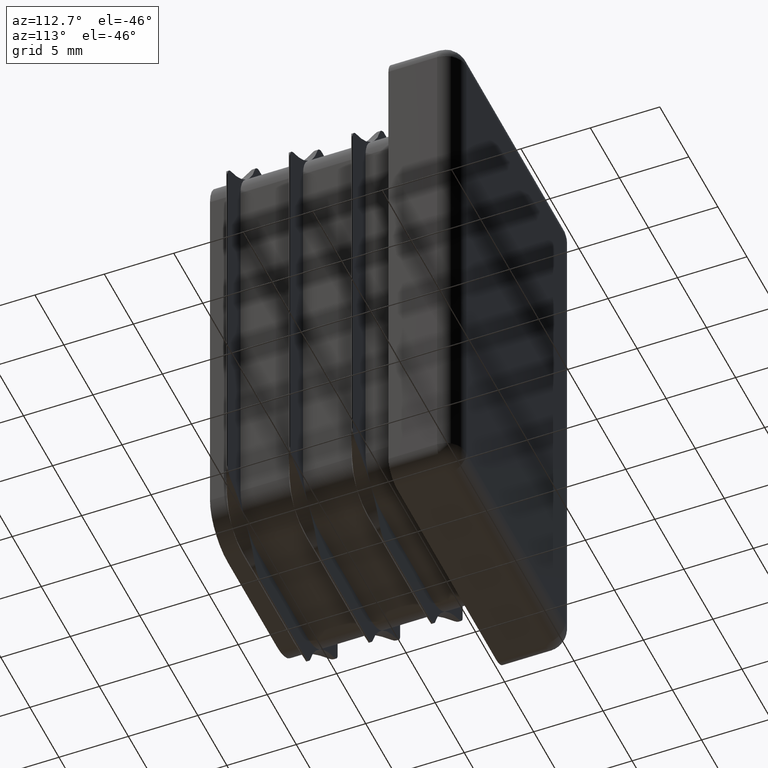
[diagram: clean part render]
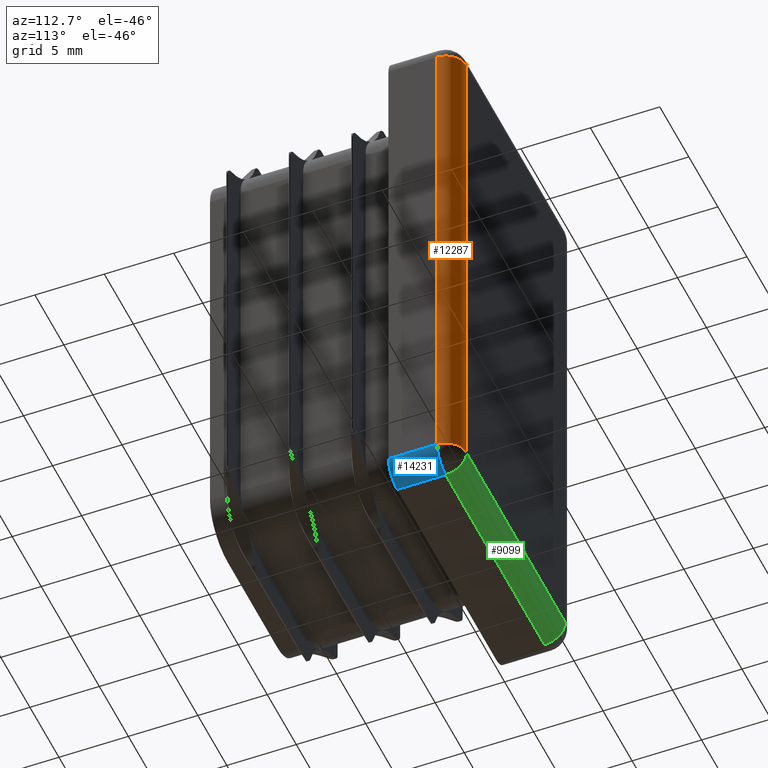
[diagram: same view with three faces highlighted in distinct colors, each labeled with its STEP entity id]
A machine part, auxiliary view with three faces highlighted in distinct colors.
Their STEP definitions:

[orange] entity #12287 — the highlighted cylindrical surface (edge-blend (fillet) strip) has radius 1.5 mm, axis along (0, -0, 1).
#180 = VECTOR ( 'NONE', #11767, 1000.000000000000000 ) ;
#631 = VERTEX_POINT ( 'NONE', #14915 ) ;
#647 = LINE ( 'NONE', #8558, #180 ) ;
#1496 = DIRECTION ( 'NONE',  ( 1.000000000000000000, 0.000000000000000000, 0.000000000000000000 ) ) ;
#1526 = CIRCLE ( 'NONE', #11439, 1.499999999999999556 ) ;
#2620 = DIRECTION ( 'NONE',  ( 0.000000000000000000, 0.000000000000000000, 1.000000000000000000 ) ) ;
#2693 = AXIS2_PLACEMENT_3D ( 'NONE', #4427, #14805, #1496 ) ;
#3025 = CYLINDRICAL_SURFACE ( 'NONE', #6285, 1.499999999999999556 ) ;
#3050 = CARTESIAN_POINT ( 'NONE',  ( 8.500000000000000000, 5.000000000000000000, -18.50000000000000000 ) ) ;
#3333 = VERTEX_POINT ( 'NONE', #3451 ) ;
#3415 = ORIENTED_EDGE ( 'NONE', *, *, #6999, .T. ) ;
#3451 = CARTESIAN_POINT ( 'NONE',  ( 10.00000000000000000, 3.500000000000000000, -18.50000000000000000 ) ) ;
#4155 = DIRECTION ( 'NONE',  ( 8.673617379884035472E-17, -0.000000000000000000, 1.000000000000000000 ) ) ;
#4222 = DIRECTION ( 'NONE',  ( 1.000000000000000000, 0.000000000000000000, -8.673617379884039170E-17 ) ) ;
#4427 = CARTESIAN_POINT ( 'NONE',  ( 8.500000000000003553, 3.500000000000000000, 18.50000000000000000 ) ) ;
#6018 = EDGE_CURVE ( 'NONE', #9917, #17380, #647, .T. ) ;
#6285 = AXIS2_PLACEMENT_3D ( 'NONE', #17527, #4155, #4222 ) ;
#6999 = EDGE_CURVE ( 'NONE', #3333, #17380, #1526, .T. ) ;
#7153 = ORIENTED_EDGE ( 'NONE', *, *, #6018, .F. ) ;
#7675 = CIRCLE ( 'NONE', #2693, 1.499999999999999556 ) ;
#8091 = FACE_OUTER_BOUND ( 'NONE', #16697, .T. ) ;
#8558 = CARTESIAN_POINT ( 'NONE',  ( 8.500000000000000000, 5.000000000000000000, -18.50000000000000000 ) ) ;
#9432 = CARTESIAN_POINT ( 'NONE',  ( 10.00000000000000355, 3.500000000000000000, 18.50000000000000000 ) ) ;
#9917 = VERTEX_POINT ( 'NONE', #19038 ) ;
#10053 = EDGE_CURVE ( 'NONE', #631, #9917, #7675, .T. ) ;
#11054 = LINE ( 'NONE', #9432, #14019 ) ;
#11420 = CARTESIAN_POINT ( 'NONE',  ( 8.500000000000001776, 3.500000000000000000, -18.50000000000000000 ) ) ;
#11439 = AXIS2_PLACEMENT_3D ( 'NONE', #11420, #2620, #14373 ) ;
#11767 = DIRECTION ( 'NONE',  ( -8.673617379884035472E-17, 0.000000000000000000, -1.000000000000000000 ) ) ;
#12151 = ORIENTED_EDGE ( 'NONE', *, *, #10053, .F. ) ;
#12287 = ADVANCED_FACE ( 'NONE', ( #8091 ), #3025, .T. ) ;
#12424 = ORIENTED_EDGE ( 'NONE', *, *, #13562, .F. ) ;
#13562 = EDGE_CURVE ( 'NONE', #3333, #631, #11054, .T. ) ;
#13868 = DIRECTION ( 'NONE',  ( 8.673617379884035472E-17, -0.000000000000000000, 1.000000000000000000 ) ) ;
#14019 = VECTOR ( 'NONE', #13868, 1000.000000000000000 ) ;
#14373 = DIRECTION ( 'NONE',  ( 1.000000000000000000, 0.000000000000000000, 0.000000000000000000 ) ) ;
#14805 = DIRECTION ( 'NONE',  ( 0.000000000000000000, 0.000000000000000000, 1.000000000000000000 ) ) ;
#14915 = CARTESIAN_POINT ( 'NONE',  ( 10.00000000000000355, 3.500000000000000000, 18.50000000000000000 ) ) ;
#16697 = EDGE_LOOP ( 'NONE', ( #3415, #7153, #12151, #12424 ) ) ;
#17380 = VERTEX_POINT ( 'NONE', #3050 ) ;
#17527 = CARTESIAN_POINT ( 'NONE',  ( 8.500000000000001776, 3.500000000000000000, -7.372574772901432123E-16 ) ) ;
#19038 = CARTESIAN_POINT ( 'NONE',  ( 8.500000000000003553, 5.000000000000000000, 18.50000000000000000 ) ) ;

[blue] entity #14231 — the highlighted cylindrical surface (edge-blend (fillet) strip) has radius 1.5 mm, axis along (0, -1, 0).
#1477 = DIRECTION ( 'NONE',  ( -0.000000000000000000, -1.000000000000000000, -0.000000000000000000 ) ) ;
#1645 = ORIENTED_EDGE ( 'NONE', *, *, #12959, .T. ) ;
#1691 = CARTESIAN_POINT ( 'NONE',  ( 8.500000000000001776, 3.500000000000000000, -18.50000000000000000 ) ) ;
#2581 = EDGE_CURVE ( 'NONE', #11159, #13990, #13991, .T. ) ;
#3333 = VERTEX_POINT ( 'NONE', #3451 ) ;
#3451 = CARTESIAN_POINT ( 'NONE',  ( 10.00000000000000000, 3.500000000000000000, -18.50000000000000000 ) ) ;
#3637 = CIRCLE ( 'NONE', #6811, 1.500000000000001332 ) ;
#3692 = CIRCLE ( 'NONE', #14911, 1.500000000000001332 ) ;
#4301 = CARTESIAN_POINT ( 'NONE',  ( 8.500000000000001776, 0.000000000000000000, -18.50000000000000000 ) ) ;
#4860 = EDGE_CURVE ( 'NONE', #13990, #7274, #3637, .T. ) ;
#6811 = AXIS2_PLACEMENT_3D ( 'NONE', #4301, #1477, #12089 ) ;
#7252 = VECTOR ( 'NONE', #13120, 1000.000000000000000 ) ;
#7274 = VERTEX_POINT ( 'NONE', #10567 ) ;
#8415 = EDGE_CURVE ( 'NONE', #7274, #3333, #17845, .T. ) ;
#8928 = CARTESIAN_POINT ( 'NONE',  ( 10.00000000000000000, 5.000000000000000000, -18.50000000000000000 ) ) ;
#10497 = CYLINDRICAL_SURFACE ( 'NONE', #13809, 1.500000000000001332 ) ;
#10567 = CARTESIAN_POINT ( 'NONE',  ( 10.00000000000000000, 0.000000000000000000, -18.50000000000000000 ) ) ;
#10807 = VECTOR ( 'NONE', #10857, 1000.000000000000000 ) ;
#10857 = DIRECTION ( 'NONE',  ( 0.000000000000000000, -1.000000000000000000, 0.000000000000000000 ) ) ;
#11084 = ORIENTED_EDGE ( 'NONE', *, *, #2581, .F. ) ;
#11159 = VERTEX_POINT ( 'NONE', #11555 ) ;
#11192 = FACE_OUTER_BOUND ( 'NONE', #12653, .T. ) ;
#11555 = CARTESIAN_POINT ( 'NONE',  ( 8.500000000000001776, 3.500000000000000000, -20.00000000000000000 ) ) ;
#12089 = DIRECTION ( 'NONE',  ( 0.000000000000000000, 0.000000000000000000, 1.000000000000000000 ) ) ;
#12653 = EDGE_LOOP ( 'NONE', ( #11084, #1645, #18885, #16440 ) ) ;
#12959 = EDGE_CURVE ( 'NONE', #11159, #3333, #3692, .T. ) ;
#13120 = DIRECTION ( 'NONE',  ( -0.000000000000000000, 1.000000000000000000, -0.000000000000000000 ) ) ;
#13387 = DIRECTION ( 'NONE',  ( 0.000000000000000000, -1.000000000000000000, 0.000000000000000000 ) ) ;
#13751 = CARTESIAN_POINT ( 'NONE',  ( 8.500000000000001776, 5.000000000000000000, -20.00000000000000000 ) ) ;
#13809 = AXIS2_PLACEMENT_3D ( 'NONE', #18968, #18787, #14473 ) ;
#13990 = VERTEX_POINT ( 'NONE', #15087 ) ;
#13991 = LINE ( 'NONE', #13751, #10807 ) ;
#14231 = ADVANCED_FACE ( 'NONE', ( #11192 ), #10497, .T. ) ;
#14473 = DIRECTION ( 'NONE',  ( 0.000000000000000000, 0.000000000000000000, -1.000000000000000000 ) ) ;
#14911 = AXIS2_PLACEMENT_3D ( 'NONE', #1691, #13387, #16282 ) ;
#15087 = CARTESIAN_POINT ( 'NONE',  ( 8.500000000000001776, 0.000000000000000000, -20.00000000000000000 ) ) ;
#16282 = DIRECTION ( 'NONE',  ( 0.000000000000000000, 0.000000000000000000, -1.000000000000000000 ) ) ;
#16440 = ORIENTED_EDGE ( 'NONE', *, *, #4860, .F. ) ;
#17845 = LINE ( 'NONE', #8928, #7252 ) ;
#18787 = DIRECTION ( 'NONE',  ( 0.000000000000000000, -1.000000000000000000, 0.000000000000000000 ) ) ;
#18885 = ORIENTED_EDGE ( 'NONE', *, *, #8415, .F. ) ;
#18968 = CARTESIAN_POINT ( 'NONE',  ( 8.500000000000001776, 5.000000000000000000, -18.50000000000000000 ) ) ;

[green] entity #9099 — the highlighted cylindrical surface (edge-blend (fillet) strip) has radius 1.5 mm, axis along (1, 0, 0).
#844 = AXIS2_PLACEMENT_3D ( 'NONE', #6668, #8146, #2309 ) ;
#1319 = VERTEX_POINT ( 'NONE', #16648 ) ;
#2062 = DIRECTION ( 'NONE',  ( 0.000000000000000000, 0.000000000000000000, -1.000000000000000000 ) ) ;
#2196 = CARTESIAN_POINT ( 'NONE',  ( -8.500000000000000000, 3.500000000000000000, -18.50000000000000000 ) ) ;
#2309 = DIRECTION ( 'NONE',  ( 0.000000000000000000, 0.000000000000000000, -1.000000000000000000 ) ) ;
#3050 = CARTESIAN_POINT ( 'NONE',  ( 8.500000000000000000, 5.000000000000000000, -18.50000000000000000 ) ) ;
#3066 = ORIENTED_EDGE ( 'NONE', *, *, #18590, .F. ) ;
#3162 = EDGE_LOOP ( 'NONE', ( #3362, #17390, #3066, #13453 ) ) ;
#3173 = VECTOR ( 'NONE', #9996, 1000.000000000000000 ) ;
#3285 = CARTESIAN_POINT ( 'NONE',  ( -8.500000000000000000, 5.000000000000000000, -18.50000000000000000 ) ) ;
#3362 = ORIENTED_EDGE ( 'NONE', *, *, #17730, .T. ) ;
#3598 = DIRECTION ( 'NONE',  ( 1.000000000000000000, -0.000000000000000000, 0.000000000000000000 ) ) ;
#4488 = DIRECTION ( 'NONE',  ( 1.000000000000000000, -0.000000000000000000, -0.000000000000000000 ) ) ;
#4727 = VECTOR ( 'NONE', #4488, 1000.000000000000000 ) ;
#5509 = EDGE_CURVE ( 'NONE', #17380, #7691, #15833, .T. ) ;
#6668 = CARTESIAN_POINT ( 'NONE',  ( 0.000000000000000000, 3.500000000000000000, -18.50000000000000000 ) ) ;
#7576 = CARTESIAN_POINT ( 'NONE',  ( 8.500000000000001776, 3.500000000000000000, -20.00000000000000000 ) ) ;
#7691 = VERTEX_POINT ( 'NONE', #3285 ) ;
#8146 = DIRECTION ( 'NONE',  ( 1.000000000000000000, 0.000000000000000000, 0.000000000000000000 ) ) ;
#9099 = ADVANCED_FACE ( 'NONE', ( #12319 ), #16235, .T. ) ;
#9996 = DIRECTION ( 'NONE',  ( -1.000000000000000000, 0.000000000000000000, 0.000000000000000000 ) ) ;
#10611 = CIRCLE ( 'NONE', #12480, 1.500000000000001332 ) ;
#11159 = VERTEX_POINT ( 'NONE', #11555 ) ;
#11413 = CARTESIAN_POINT ( 'NONE',  ( -8.500000000000000000, 5.000000000000000000, -18.50000000000000000 ) ) ;
#11555 = CARTESIAN_POINT ( 'NONE',  ( 8.500000000000001776, 3.500000000000000000, -20.00000000000000000 ) ) ;
#11913 = DIRECTION ( 'NONE',  ( 0.000000000000000000, 0.000000000000000000, -1.000000000000000000 ) ) ;
#12116 = AXIS2_PLACEMENT_3D ( 'NONE', #2196, #3598, #2062 ) ;
#12319 = FACE_OUTER_BOUND ( 'NONE', #3162, .T. ) ;
#12480 = AXIS2_PLACEMENT_3D ( 'NONE', #16229, #17756, #11913 ) ;
#13453 = ORIENTED_EDGE ( 'NONE', *, *, #14359, .F. ) ;
#13500 = LINE ( 'NONE', #7576, #4727 ) ;
#14319 = CIRCLE ( 'NONE', #12116, 1.500000000000001332 ) ;
#14359 = EDGE_CURVE ( 'NONE', #1319, #11159, #13500, .T. ) ;
#15833 = LINE ( 'NONE', #11413, #3173 ) ;
#16229 = CARTESIAN_POINT ( 'NONE',  ( 8.500000000000001776, 3.500000000000000000, -18.50000000000000000 ) ) ;
#16235 = CYLINDRICAL_SURFACE ( 'NONE', #844, 1.500000000000001332 ) ;
#16648 = CARTESIAN_POINT ( 'NONE',  ( -8.500000000000000000, 3.500000000000000000, -20.00000000000000000 ) ) ;
#17380 = VERTEX_POINT ( 'NONE', #3050 ) ;
#17390 = ORIENTED_EDGE ( 'NONE', *, *, #5509, .F. ) ;
#17730 = EDGE_CURVE ( 'NONE', #1319, #7691, #14319, .T. ) ;
#17756 = DIRECTION ( 'NONE',  ( 1.000000000000000000, -0.000000000000000000, 0.000000000000000000 ) ) ;
#18590 = EDGE_CURVE ( 'NONE', #11159, #17380, #10611, .T. ) ;